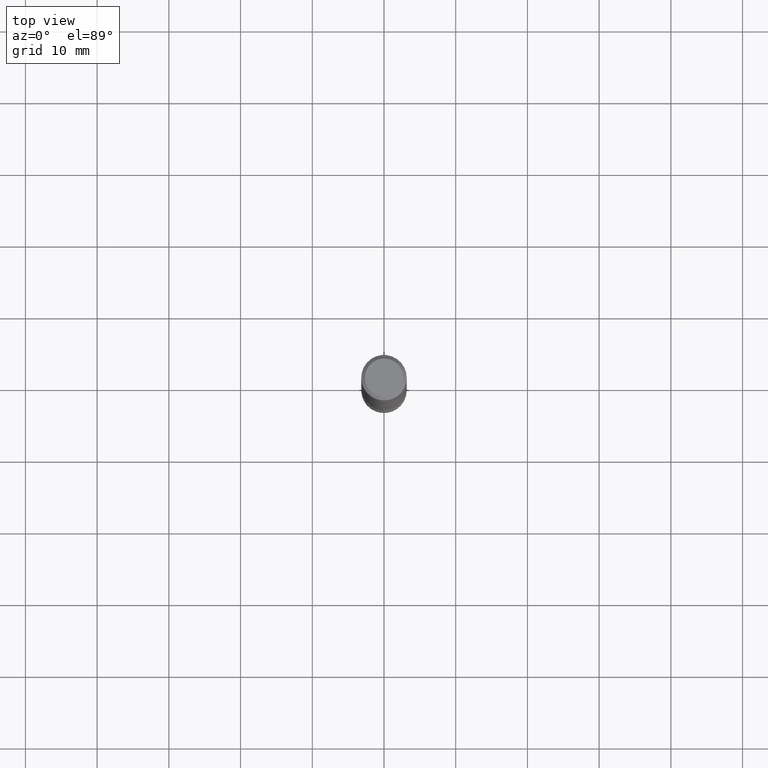
[diagram: clean part render]
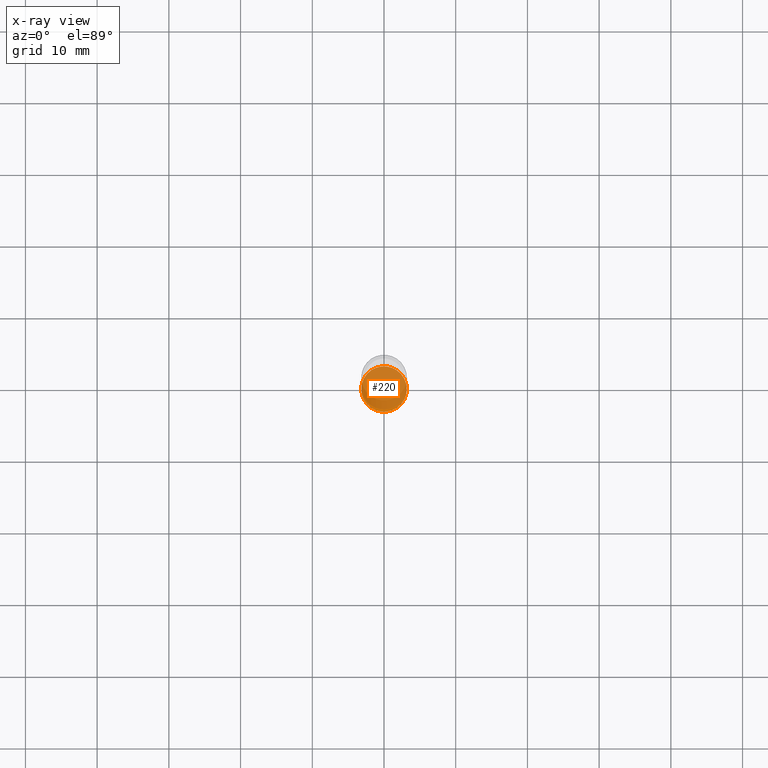
[diagram: x-ray — body ghosted, one internal face saturated and labeled with its STEP entity id]
A machine part, top view, then the same camera in x-ray: the body is ghosted and one INTERNAL B-rep face — a face not visible from any outside direction — is saturated and labeled: STEP entity #220.
In plain terms, the highlighted planar face has unit normal (0, -0, -1).
Its self-contained STEP definition (entity closure, byte-faithful):
#37 = DIRECTION ( 'NONE',  ( 1.000000000000000000, -6.982962677686273810E-15, 0.000000000000000000 ) ) ;
#50 = ORIENTED_EDGE ( 'NONE', *, *, #169, .T. ) ;
#69 = AXIS2_PLACEMENT_3D ( 'NONE', #484, #97, #276 ) ;
#77 = CIRCLE ( 'NONE', #462, 0.1250000000000003608 ) ;
#97 = DIRECTION ( 'NONE',  ( -2.445468806185136597E-29, 3.491481338843145583E-15, 1.000000000000000000 ) ) ;
#130 = PLANE ( 'NONE',  #381 ) ;
#169 = EDGE_CURVE ( 'NONE', #494, #359, #77, .T. ) ;
#197 = CARTESIAN_POINT ( 'NONE',  ( -0.1250000000000003608, -1.237072196455671739E-14, -3.625000000000000444 ) ) ;
#220 = ADVANCED_FACE ( 'NONE', ( #384 ), #130, .F. ) ;
#227 = ORIENTED_EDGE ( 'NONE', *, *, #450, .T. ) ;
#251 = CARTESIAN_POINT ( 'NONE',  ( 0.1250000000000003608, -1.352949018801719066E-14, -3.625000000000000444 ) ) ;
#260 = DIRECTION ( 'NONE',  ( 2.438088387897960049E-29, -3.491481338843145188E-15, -1.000000000000000000 ) ) ;
#276 = DIRECTION ( 'NONE',  ( 1.000000000000000000, -6.982962677686273810E-15, 0.000000000000000000 ) ) ;
#350 = DIRECTION ( 'NONE',  ( -2.445468806185136597E-29, 3.491481338843145583E-15, 1.000000000000000000 ) ) ;
#359 = VERTEX_POINT ( 'NONE', #197 ) ;
#381 = AXIS2_PLACEMENT_3D ( 'NONE', #472, #260, #433 ) ;
#384 = FACE_OUTER_BOUND ( 'NONE', #483, .T. ) ;
#386 = CARTESIAN_POINT ( 'NONE',  ( 8.864824422421121284E-29, -1.265661985330640417E-14, -3.625000000000000444 ) ) ;
#404 = CIRCLE ( 'NONE', #69, 0.1250000000000003608 ) ;
#433 = DIRECTION ( 'NONE',  ( -1.000000000000000000, 6.982962677686265922E-15, -4.876176775795935793E-29 ) ) ;
#450 = EDGE_CURVE ( 'NONE', #359, #494, #404, .T. ) ;
#462 = AXIS2_PLACEMENT_3D ( 'NONE', #386, #350, #37 ) ;
#472 = CARTESIAN_POINT ( 'NONE',  ( -2.199483274483249435E-29, -2.850133821655908390E-14, -3.624999999999999556 ) ) ;
#483 = EDGE_LOOP ( 'NONE', ( #50, #227 ) ) ;
#484 = CARTESIAN_POINT ( 'NONE',  ( 8.864824422421121284E-29, -1.265661985330640417E-14, -3.625000000000000444 ) ) ;
#494 = VERTEX_POINT ( 'NONE', #251 ) ;